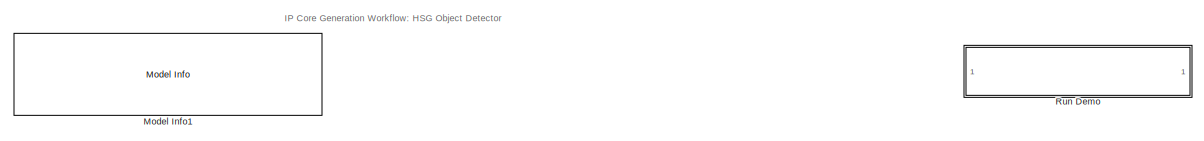
[diagram: root canvas - part 1/5, top left region]
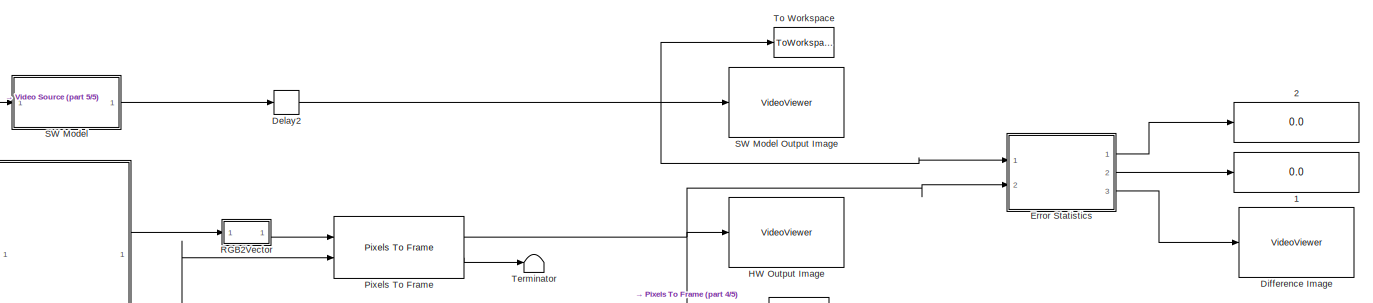
[diagram: root canvas - part 2/5, central region]
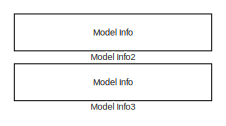
[diagram: root canvas - part 3/5, middle right region]
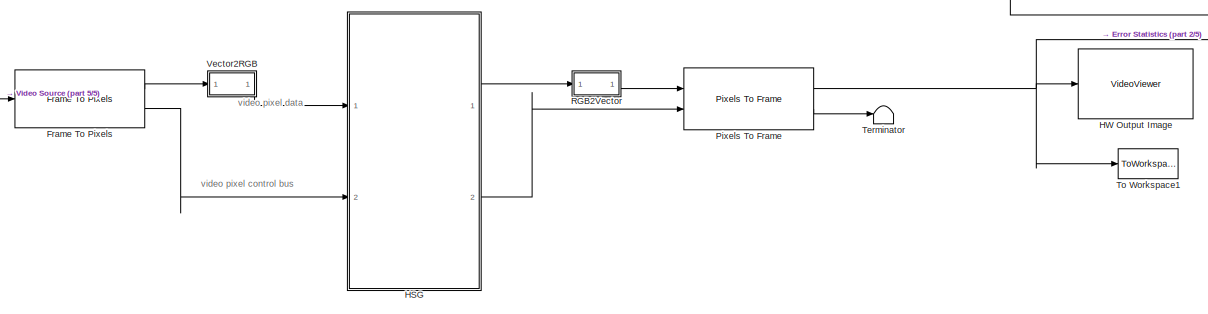
[diagram: root canvas - part 4/5, bottom center region]
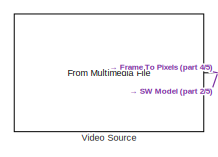
[diagram: root canvas - part 5/5, bottom left region]
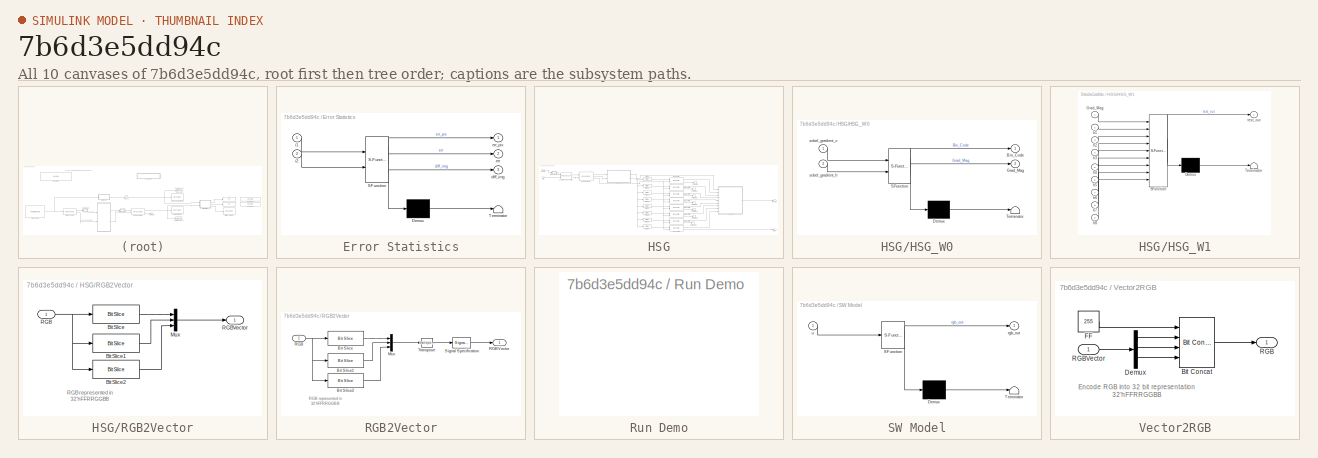
[diagram: thumbnail index - all 10 canvases of the model, root first then tree order]
MODEL slx_7b6d3e5dd94c
KIND model
CONFIG AbsTol = auto
CONFIG EnableMultiTasking = off
CONFIG FixedStep = auto
CONFIG InitFcn = Ts = 1e-3;\nTs_240p = 402*324*Ts;\n\n
CONFIG MaxStep = auto
CONFIG MinStep = auto
CONFIG RelTol = 1e-3
CONFIG SampleTimeConstraint = Unconstrained
CONFIG Solver = FixedStepDiscrete
CONFIG SolverName = FixedStepDiscrete
CONFIG StartTime = 0.0
CONFIG StopTime = Ts_240p
BLOCK [Display]  1
  Decimation = 1
  Ports = [1]
BLOCK [Display]  2
  Decimation = 1
  Ports = [1]
BLOCK [Delay] Delay2
  DelayLength = 1
  InitialCondition = 0
  InputPortMap = u0
  Ports = [1, 1]
BLOCK [VideoViewer] Difference Image
  FigPos = [516.2 717.2 730.4 340.8]
  Ports = [1]
  ScopeSpecificationString = vipscopes.VideoViewerScopeCfg('CurrentConfiguration', extmgr.ConfigurationSet(extmgr.Configuration('Core','General UI',true),extmgr.Configuration('Core','Source UI',true),extmgr.Configuration('Sources','WiredSimulink',true),extmgr.Configuration('Sources','Streaming',false),extmgr.Configuration('Sources','SimulinkEvent',false),extmgr.Configuration('Sources','Workspace',false),extmgr.Configuration('...<+1300ch>
  colormapValue = gray(256)
BLOCK [SubSystem] Error Statistics
  ErrorFcn = Stateflow.Translate.translate
  PermitHierarchicalResolution = ExplicitOnly
  Ports = [2, 3]
  RequestExecContextInheritance = off
  SFBlockType = MATLAB Function
  TreatAsAtomicUnit = on
  Variant = off
BLOCK [Demux] Error Statistics/ Demux 
  Outputs = 1
  Ports = [1, 1]
BLOCK [S-Function] Error Statistics/ SFunction 
  EnableBusSupport = on
  FunctionName = sf_sfun
  PortCounts = [2 4]
  Ports = [2, 4]
  SFcnIsStateOwnerBlock = off
  SFunctionDeploymentMode = off
  Tag = Stateflow S-Function HSG_Old 5
BLOCK [Terminator] Error Statistics/ Terminator 
BLOCK [Outport] Error Statistics/diff_img
  IconDisplay = Port number
  Port = 3
BLOCK [Outport] Error Statistics/err
  IconDisplay = Port number
  Port = 2
BLOCK [Outport] Error Statistics/err_pix
  IconDisplay = Port number
BLOCK [Inport] Error Statistics/i1
  IconDisplay = Port number
BLOCK [Inport] Error Statistics/i2
  IconDisplay = Port number
  Port = 2
BLOCK [Reference] Frame To Pixels  REF=visionhdlio/Frame To Pixels
  Ports = [1, 2]
  SourceBlock = visionhdlio/Frame To Pixels
  SourceType = Frame To Pixels
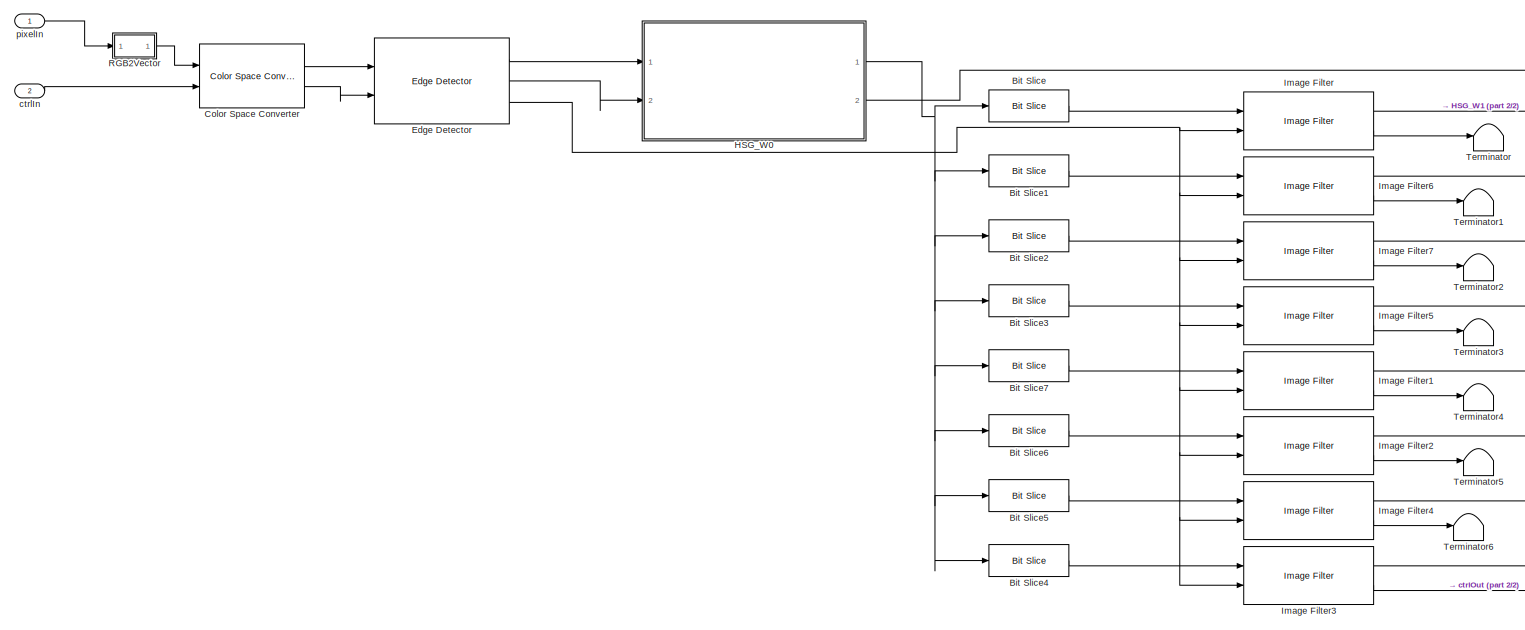
[diagram: HSG - part 1/2, center side, full height]
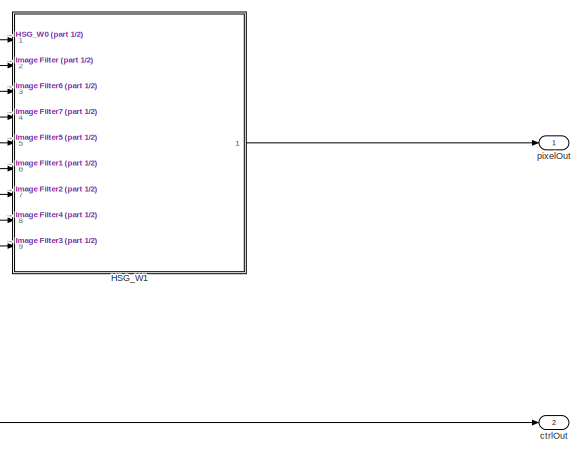
[diagram: HSG - part 2/2, middle right region]
BLOCK [SubSystem] HSG
  Ports = [2, 2]
  RequestExecContextInheritance = off
  TreatAsAtomicUnit = on
  Variant = off
BLOCK [Reference] HSG/Bit Slice  REF=hdlsllib/HDL Operations/Bit Slice
  Ports = [1, 1]
  SourceBlock = hdlsllib/HDL Operations/Bit Slice
  SourceType = Bit Slice
BLOCK [Reference] HSG/Bit Slice1  REF=hdlsllib/HDL Operations/Bit Slice
  Ports = [1, 1]
  SourceBlock = hdlsllib/HDL Operations/Bit Slice
  SourceType = Bit Slice
BLOCK [Reference] HSG/Bit Slice2  REF=hdlsllib/HDL Operations/Bit Slice
  Ports = [1, 1]
  SourceBlock = hdlsllib/HDL Operations/Bit Slice
  SourceType = Bit Slice
BLOCK [Reference] HSG/Bit Slice3  REF=hdlsllib/HDL Operations/Bit Slice
  Ports = [1, 1]
  SourceBlock = hdlsllib/HDL Operations/Bit Slice
  SourceType = Bit Slice
BLOCK [Reference] HSG/Bit Slice4  REF=hdlsllib/HDL Operations/Bit Slice
  Ports = [1, 1]
  SourceBlock = hdlsllib/HDL Operations/Bit Slice
  SourceType = Bit Slice
BLOCK [Reference] HSG/Bit Slice5  REF=hdlsllib/HDL Operations/Bit Slice
  Ports = [1, 1]
  SourceBlock = hdlsllib/HDL Operations/Bit Slice
  SourceType = Bit Slice
BLOCK [Reference] HSG/Bit Slice6  REF=hdlsllib/HDL Operations/Bit Slice
  Ports = [1, 1]
  SourceBlock = hdlsllib/HDL Operations/Bit Slice
  SourceType = Bit Slice
BLOCK [Reference] HSG/Bit Slice7  REF=hdlsllib/HDL Operations/Bit Slice
  Ports = [1, 1]
  SourceBlock = hdlsllib/HDL Operations/Bit Slice
  SourceType = Bit Slice
BLOCK [Reference] HSG/Color Space Converter  REF=visionhdlconversions/Color Space Converter
  Ports = [2, 2]
  SourceBlock = visionhdlconversions/Color Space Converter
  SourceType = Color Space Converter
BLOCK [Reference] HSG/Edge Detector  REF=visionhdlanalysis/Edge Detector
  Ports = [2, 3]
  SourceBlock = visionhdlanalysis/Edge Detector
  SourceType = Edge Detector
BLOCK [SubSystem] HSG/HSG_W0
  ErrorFcn = Stateflow.Translate.translate
  PermitHierarchicalResolution = ExplicitOnly
  Ports = [2, 2]
  RequestExecContextInheritance = off
  SFBlockType = MATLAB Function
  TreatAsAtomicUnit = on
  Variant = off
BLOCK [Demux] HSG/HSG_W0/ Demux 
  Outputs = 1
  Ports = [1, 1]
BLOCK [S-Function] HSG/HSG_W0/ SFunction 
  EnableBusSupport = on
  FunctionName = sf_sfun
  PortCounts = [2 3]
  Ports = [2, 3]
  SFcnIsStateOwnerBlock = off
  SFunctionDeploymentMode = off
  Tag = Stateflow S-Function HSG_Old 3
BLOCK [Terminator] HSG/HSG_W0/ Terminator 
BLOCK [Outport] HSG/HSG_W0/Bin_Code
  IconDisplay = Port number
BLOCK [Outport] HSG/HSG_W0/Grad_Mag
  IconDisplay = Port number
  Port = 2
BLOCK [Inport] HSG/HSG_W0/sobel_gradient_h
  IconDisplay = Port number
  Port = 2
BLOCK [Inport] HSG/HSG_W0/sobel_gradient_v
  IconDisplay = Port number
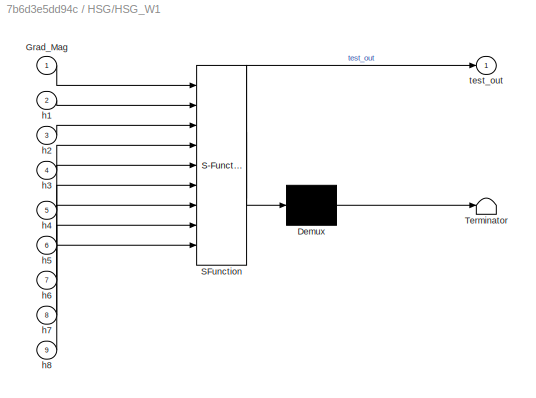
BLOCK [SubSystem] HSG/HSG_W1
  ErrorFcn = Stateflow.Translate.translate
  PermitHierarchicalResolution = ExplicitOnly
  Ports = [9, 1]
  RequestExecContextInheritance = off
  SFBlockType = MATLAB Function
  TreatAsAtomicUnit = on
  Variant = off
BLOCK [Demux] HSG/HSG_W1/ Demux 
  Outputs = 1
  Ports = [1, 1]
BLOCK [S-Function] HSG/HSG_W1/ SFunction 
  EnableBusSupport = on
  FunctionName = sf_sfun
  PortCounts = [9 2]
  Ports = [9, 2]
  SFcnIsStateOwnerBlock = off
  SFunctionDeploymentMode = off
  Tag = Stateflow S-Function HSG_Old 2
BLOCK [Terminator] HSG/HSG_W1/ Terminator 
BLOCK [Inport] HSG/HSG_W1/Grad_Mag
  IconDisplay = Port number
BLOCK [Inport] HSG/HSG_W1/h1
  IconDisplay = Port number
  Port = 2
BLOCK [Inport] HSG/HSG_W1/h2
  IconDisplay = Port number
  Port = 3
BLOCK [Inport] HSG/HSG_W1/h3
  IconDisplay = Port number
  Port = 4
BLOCK [Inport] HSG/HSG_W1/h4
  IconDisplay = Port number
  Port = 5
BLOCK [Inport] HSG/HSG_W1/h5
  IconDisplay = Port number
  Port = 6
BLOCK [Inport] HSG/HSG_W1/h6
  IconDisplay = Port number
  Port = 7
BLOCK [Inport] HSG/HSG_W1/h7
  IconDisplay = Port number
  Port = 8
BLOCK [Inport] HSG/HSG_W1/h8
  IconDisplay = Port number
  Port = 9
BLOCK [Outport] HSG/HSG_W1/test_out
  IconDisplay = Port number
BLOCK [Reference] HSG/Image Filter  REF=visionhdlfilter/Image Filter
  Ports = [2, 2]
  SourceBlock = visionhdlfilter/Image Filter
  SourceType = Image Filter
BLOCK [Reference] HSG/Image Filter1  REF=visionhdlfilter/Image Filter
  Ports = [2, 2]
  SourceBlock = visionhdlfilter/Image Filter
  SourceType = Image Filter
BLOCK [Reference] HSG/Image Filter2  REF=visionhdlfilter/Image Filter
  Ports = [2, 2]
  SourceBlock = visionhdlfilter/Image Filter
  SourceType = Image Filter
BLOCK [Reference] HSG/Image Filter3  REF=visionhdlfilter/Image Filter
  Ports = [2, 2]
  SourceBlock = visionhdlfilter/Image Filter
  SourceType = Image Filter
BLOCK [Reference] HSG/Image Filter4  REF=visionhdlfilter/Image Filter
  Ports = [2, 2]
  SourceBlock = visionhdlfilter/Image Filter
  SourceType = Image Filter
BLOCK [Reference] HSG/Image Filter5  REF=visionhdlfilter/Image Filter
  Ports = [2, 2]
  SourceBlock = visionhdlfilter/Image Filter
  SourceType = Image Filter
BLOCK [Reference] HSG/Image Filter6  REF=visionhdlfilter/Image Filter
  Ports = [2, 2]
  SourceBlock = visionhdlfilter/Image Filter
  SourceType = Image Filter
BLOCK [Reference] HSG/Image Filter7  REF=visionhdlfilter/Image Filter
  Ports = [2, 2]
  SourceBlock = visionhdlfilter/Image Filter
  SourceType = Image Filter
BLOCK [SubSystem] HSG/RGB2Vector
  Ports = [1, 1]
  RequestExecContextInheritance = off
  ShowPortLabels = none
  Variant = off
BLOCK [Reference] HSG/RGB2Vector/Bit Slice  REF=hdlsllib/HDL Operations/Bit Slice
  Ports = [1, 1]
  SourceBlock = hdlsllib/HDL Operations/Bit Slice
  SourceType = Bit Slice
BLOCK [Reference] HSG/RGB2Vector/Bit Slice1  REF=hdlsllib/HDL Operations/Bit Slice
  Ports = [1, 1]
  SourceBlock = hdlsllib/HDL Operations/Bit Slice
  SourceType = Bit Slice
BLOCK [Reference] HSG/RGB2Vector/Bit Slice2  REF=hdlsllib/HDL Operations/Bit Slice
  Ports = [1, 1]
  SourceBlock = hdlsllib/HDL Operations/Bit Slice
  SourceType = Bit Slice
BLOCK [Mux] HSG/RGB2Vector/Mux
  DisplayOption = bar
  Inputs = 3
  Ports = [3, 1]
BLOCK [Inport] HSG/RGB2Vector/RGB
  IconDisplay = Port number
BLOCK [Outport] HSG/RGB2Vector/RGBVector
  IconDisplay = Port number
BLOCK [Terminator] HSG/Terminator
BLOCK [Terminator] HSG/Terminator1
BLOCK [Terminator] HSG/Terminator2
BLOCK [Terminator] HSG/Terminator3
BLOCK [Terminator] HSG/Terminator4
BLOCK [Terminator] HSG/Terminator5
BLOCK [Terminator] HSG/Terminator6
BLOCK [Inport] HSG/ctrlIn
  IconDisplay = Port number
  Port = 2
BLOCK [Outport] HSG/ctrlOut
  IconDisplay = Port number
  Port = 2
BLOCK [Inport] HSG/pixelIn
  IconDisplay = Port number
BLOCK [Outport] HSG/pixelOut
  IconDisplay = Port number
BLOCK [VideoViewer] HW Output Image
  FigPos = [21.8 576.4 730.4 446.4]
  Ports = [1]
  ScopeSpecificationString = vipscopes.VideoViewerScopeCfg('CurrentConfiguration', extmgr.ConfigurationSet(extmgr.Configuration('Core','General UI',true),extmgr.Configuration('Core','Source UI',true),extmgr.Configuration('Sources','WiredSimulink',true),extmgr.Configuration('Sources','Streaming',false),extmgr.Configuration('Sources','SimulinkEvent',false),extmgr.Configuration('Sources','Workspace',false),extmgr.Configuration('...<+1285ch>
  colormapValue = gray(256)
BLOCK [Reference] Model Info1  REF=simulink/Model-Wide
Utilities/Model Info
  Ports = []
  SourceBlock = simulink/Model-Wide\nUtilities/Model Info
  SourceType = CMBlock
BLOCK [Reference] Model Info2  REF=simulink/Model-Wide
Utilities/Model Info
  Ports = []
  SourceBlock = simulink/Model-Wide\nUtilities/Model Info
  SourceType = CMBlock
BLOCK [Reference] Model Info3  REF=simulink/Model-Wide
Utilities/Model Info
  Ports = []
  SourceBlock = simulink/Model-Wide\nUtilities/Model Info
  SourceType = CMBlock
BLOCK [Reference] Pixels To Frame  REF=visionhdlio/Pixels To Frame
  Ports = [2, 2]
  SourceBlock = visionhdlio/Pixels To Frame
  SourceType = Pixels To Frame
BLOCK [SubSystem] RGB2Vector
  Ports = [1, 1]
  RequestExecContextInheritance = off
  ShowPortLabels = none
  Variant = off
BLOCK [Reference] RGB2Vector/Bit Slice  REF=hdlsllib/HDL Operations/Bit Slice
  Ports = [1, 1]
  SourceBlock = hdlsllib/HDL Operations/Bit Slice
  SourceType = Bit Slice
BLOCK [Reference] RGB2Vector/Bit Slice1  REF=hdlsllib/HDL Operations/Bit Slice
  Ports = [1, 1]
  SourceBlock = hdlsllib/HDL Operations/Bit Slice
  SourceType = Bit Slice
BLOCK [Reference] RGB2Vector/Bit Slice2  REF=hdlsllib/HDL Operations/Bit Slice
  Ports = [1, 1]
  SourceBlock = hdlsllib/HDL Operations/Bit Slice
  SourceType = Bit Slice
BLOCK [Mux] RGB2Vector/Mux
  DisplayOption = bar
  Inputs = 3
  Ports = [3, 1]
BLOCK [Inport] RGB2Vector/RGB
  IconDisplay = Port number
BLOCK [Outport] RGB2Vector/RGBVector
  IconDisplay = Port number
BLOCK [SignalSpecification] RGB2Vector/Signal Specification
  SignalType = real
BLOCK [Math] RGB2Vector/Transpose
  Operator = transpose
  Ports = [1, 1]
BLOCK [SubSystem] Run Demo
  OpenFcn = hdladvisor([bdroot, '/HSG'])
  Ports = []
  RequestExecContextInheritance = off
  Variant = off
BLOCK [SubSystem] SW Model
  ErrorFcn = Stateflow.Translate.translate
  PermitHierarchicalResolution = ExplicitOnly
  Ports = [1, 1]
  RequestExecContextInheritance = off
  SFBlockType = MATLAB Function
  TreatAsAtomicUnit = on
  Variant = off
BLOCK [VideoViewer] SW Model Output Image
  FigPos = [733.8 573.2 730.4 446.4]
  Ports = [1]
  ScopeSpecificationString = vipscopes.VideoViewerScopeCfg('CurrentConfiguration', extmgr.ConfigurationSet(extmgr.Configuration('Core','General UI',true),extmgr.Configuration('Core','Source UI',true),extmgr.Configuration('Sources','WiredSimulink',true),extmgr.Configuration('Sources','Streaming',false),extmgr.Configuration('Sources','SimulinkEvent',false),extmgr.Configuration('Sources','Workspace',false),extmgr.Configuration('...<+1299ch>
  colormapValue = gray(256)
BLOCK [Demux] SW Model/ Demux 
  Outputs = 1
  Ports = [1, 1]
BLOCK [S-Function] SW Model/ SFunction 
  EnableBusSupport = on
  FunctionName = sf_sfun
  PortCounts = [1 2]
  Ports = [1, 2]
  SFcnIsStateOwnerBlock = off
  SFunctionDeploymentMode = off
  Tag = Stateflow S-Function HSG_Old 1
BLOCK [Terminator] SW Model/ Terminator 
BLOCK [Outport] SW Model/rgb_out
  IconDisplay = Port number
BLOCK [Inport] SW Model/u
  IconDisplay = Port number
BLOCK [Terminator] Terminator
BLOCK [ToWorkspace] To Workspace
  MaxDataPoints = inf
  Ports = [1]
  SampleTime = -1
  SaveFormat = Timeseries
  VariableName = behavioural
BLOCK [ToWorkspace] To Workspace1
  MaxDataPoints = inf
  Ports = [1]
  SampleTime = -1
  SaveFormat = Timeseries
  VariableName = HW_Out
BLOCK [SubSystem] Vector2RGB
  Ports = [1, 1]
  RequestExecContextInheritance = off
  ShowPortLabels = none
  Variant = off
BLOCK [Reference] Vector2RGB/Bit Concat  REF=hdlsllib/HDL Operations/Bit Concat
  Ports = [4, 1]
  SourceBlock = hdlsllib/HDL Operations/Bit Concat
  SourceType = Bit Concat
BLOCK [Demux] Vector2RGB/Demux
  DisplayOption = bar
  Outputs = 3
  Ports = [1, 3]
BLOCK [Constant] Vector2RGB/FF
  OutDataTypeStr = uint8
  SampleTime = Ts
  Value = 255
BLOCK [Outport] Vector2RGB/RGB
  IconDisplay = Port number
BLOCK [Inport] Vector2RGB/RGBVector
  IconDisplay = Port number
BLOCK [Reference] Video Source  REF=dspvision/From Multimedia File
  Ports = [0, 1]
  SourceBlock = dspvision/From Multimedia File
  SourceType = From Multimedia File
ANNOTATION (root): IP Core Generation Workflow: HSG Object Detector
ANNOTATION (root): video pixel control bus
ANNOTATION (root): video pixel data
ANNOTATION HSG/RGB2Vector: RGB represented in 32'hFFRRGGBB
ANNOTATION RGB2Vector: RGB represented in 32'hFFRRGGBB
ANNOTATION Vector2RGB: Encode RGB into 32 bit representation 32'hFFRRGGBB
NET Delay2:1 -> Error Statistics:1, SW Model Output Image:1, To Workspace:1
LINE Error Statistics:1 ->  2:1
LINE Error Statistics:2 ->  1:1
LINE Error Statistics:3 -> Difference Image:1
LINE Frame To Pixels:1 -> Vector2RGB:1
LINE Frame To Pixels:2 -> HSG:2
LINE HSG/Bit Slice1:1 -> HSG/Image Filter6:1
LINE HSG/Bit Slice2:1 -> HSG/Image Filter7:1
LINE HSG/Bit Slice3:1 -> HSG/Image Filter5:1
LINE HSG/Bit Slice4:1 -> HSG/Image Filter3:1
LINE HSG/Bit Slice5:1 -> HSG/Image Filter4:1
LINE HSG/Bit Slice6:1 -> HSG/Image Filter2:1
LINE HSG/Bit Slice7:1 -> HSG/Image Filter1:1
LINE HSG/Bit Slice:1 -> HSG/Image Filter:1
LINE HSG/Color Space Converter:1 -> HSG/Edge Detector:1
LINE HSG/Color Space Converter:2 -> HSG/Edge Detector:2
LINE HSG/Edge Detector:1 -> HSG/HSG_W0:1
LINE HSG/Edge Detector:2 -> HSG/HSG_W0:2
NET HSG/Edge Detector:3 -> HSG/Image Filter1:2, HSG/Image Filter2:2, HSG/Image Filter3:2, HSG/Image Filter4:2, HSG/Image Filter5:2, HSG/Image Filter6:2, HSG/Image Filter7:2, HSG/Image Filter:2
NET HSG/HSG_W0:1 -> HSG/Bit Slice1:1, HSG/Bit Slice2:1, HSG/Bit Slice3:1, HSG/Bit Slice4:1, HSG/Bit Slice5:1, HSG/Bit Slice6:1, HSG/Bit Slice7:1, HSG/Bit Slice:1
LINE HSG/HSG_W0:2 -> HSG/HSG_W1:1
LINE HSG/HSG_W1:1 -> HSG/pixelOut:1
LINE HSG/Image Filter1:1 -> HSG/HSG_W1:6
LINE HSG/Image Filter1:2 -> HSG/Terminator4:1
LINE HSG/Image Filter2:1 -> HSG/HSG_W1:7
LINE HSG/Image Filter2:2 -> HSG/Terminator5:1
LINE HSG/Image Filter3:1 -> HSG/HSG_W1:9
LINE HSG/Image Filter3:2 -> HSG/ctrlOut:1
LINE HSG/Image Filter4:1 -> HSG/HSG_W1:8
LINE HSG/Image Filter4:2 -> HSG/Terminator6:1
LINE HSG/Image Filter5:1 -> HSG/HSG_W1:5
LINE HSG/Image Filter5:2 -> HSG/Terminator3:1
LINE HSG/Image Filter6:1 -> HSG/HSG_W1:3
LINE HSG/Image Filter6:2 -> HSG/Terminator1:1
LINE HSG/Image Filter7:1 -> HSG/HSG_W1:4
LINE HSG/Image Filter7:2 -> HSG/Terminator2:1
LINE HSG/Image Filter:1 -> HSG/HSG_W1:2
LINE HSG/Image Filter:2 -> HSG/Terminator:1
LINE HSG/RGB2Vector/Bit Slice1:1 -> HSG/RGB2Vector/Mux:2
LINE HSG/RGB2Vector/Bit Slice2:1 -> HSG/RGB2Vector/Mux:3
LINE HSG/RGB2Vector/Bit Slice:1 -> HSG/RGB2Vector/Mux:1
LINE HSG/RGB2Vector/Mux:1 -> HSG/RGB2Vector/RGBVector:1
NET HSG/RGB2Vector/RGB:1 -> HSG/RGB2Vector/Bit Slice1:1, HSG/RGB2Vector/Bit Slice2:1, HSG/RGB2Vector/Bit Slice:1
LINE HSG/RGB2Vector:1 -> HSG/Color Space Converter:1
LINE HSG/ctrlIn:1 -> HSG/Color Space Converter:2
LINE HSG/pixelIn:1 -> HSG/RGB2Vector:1
LINE HSG:1 -> RGB2Vector:1
LINE HSG:2 -> Pixels To Frame:2
NET Pixels To Frame:1 -> Error Statistics:2, HW Output Image:1, To Workspace1:1
LINE Pixels To Frame:2 -> Terminator:1
LINE RGB2Vector/Bit Slice1:1 -> RGB2Vector/Mux:2
LINE RGB2Vector/Bit Slice2:1 -> RGB2Vector/Mux:3
LINE RGB2Vector/Bit Slice:1 -> RGB2Vector/Mux:1
LINE RGB2Vector/Mux:1 -> RGB2Vector/Transpose:1
NET RGB2Vector/RGB:1 -> RGB2Vector/Bit Slice1:1, RGB2Vector/Bit Slice2:1, RGB2Vector/Bit Slice:1
LINE RGB2Vector/Signal Specification:1 -> RGB2Vector/RGBVector:1
LINE RGB2Vector/Transpose:1 -> RGB2Vector/Signal Specification:1
LINE RGB2Vector:1 -> Pixels To Frame:1
LINE SW Model:1 -> Delay2:1
LINE Vector2RGB/Bit Concat:1 -> Vector2RGB/RGB:1
LINE Vector2RGB/Demux:1 -> Vector2RGB/Bit Concat:2
LINE Vector2RGB/Demux:2 -> Vector2RGB/Bit Concat:3
LINE Vector2RGB/Demux:3 -> Vector2RGB/Bit Concat:4
LINE Vector2RGB/FF:1 -> Vector2RGB/Bit Concat:1
LINE Vector2RGB/RGBVector:1 -> Vector2RGB/Demux:1
LINE Vector2RGB:1 -> HSG:1
NET Video Source:1 -> Frame To Pixels:1, SW Model:1
note: NET lines group one-source signal fan-out (src -> all destinations, sorted); 1:1 wires keep LINE
CHART SW Model states=1 transitions=1
  STATE_LABEL 'eML_blk_kernel()'
  STATE_LABEL 'SCRIPT:\nfunction rgb_out   = HSG_SW(u)\n%   Convert to Graysclae\ny = double(rgb2gray(u));\ns = size(y);\n\n%   Apply Soble filter in both vertical and horizontal directions\nv = 0.125*[1,0,-1;2,0,-2;1,0,-1];\nh = 0.125*[1,2,1;0,0,0;-1,-2,-1];\nSobel_v = imfilter(y,v);\nSobel_h = imfilter(y,h);\n\n%   Calculate Gradient magnitude and orientation\nGrad_Mag = uint8(sqrt(double(Sobel_v.*Sobel_v + Sobel_h.*Sobel_...<+2060ch>'
CHART HSG/HSG_W1 states=1 transitions=1
  STATE_LABEL 'eML_blk_kernel()'
  STATE_LABEL 'SCRIPT:\nfunction test_out  = HSG_W1(Grad_Mag, h1, h2, h3, h4, h5, h6, h7, h8)\n\nh1_in = double(h1);\nh2_in = double(h2);\nh3_in = double(h3);\nh4_in = double(h4);\nh5_in = double(h5);\nh6_in = double(h6);\nh7_in = double(h7);\nh8_in = double(h8);\n\nh11 = fi(h1_in, 0, 4, 0);\nh22 = fi(h2_in, 0, 4, 0);\nh33 = fi(h3_in, 0, 4, 0);\nh44 = fi(h4_in, 0, 4, 0);\nh55 = fi(h5_in, 0, 4, 0);\nh66 = fi(h6_in, 0, 4, 0);\nh77 ...<+104ch>'
CHART HSG/HSG_W0 states=1 transitions=1
  STATE_LABEL 'eML_blk_kernel()'
  STATE_LABEL 'SCRIPT:\nfunction [Bin_Code, Grad_Mag] = HSG_W0(sobel_gradient_v, sobel_gradient_h)\n    Alpha = fi(255, 0, 8, 0);\n\n    %No real need for square root operation. Use condition Grad_Mag > 256\n    %instead of Grad_Mag > 16.\n%     Grad_Mag = sqrt(sobel_gradient_v*sobel_gradient_v + sobel_gradient_h*sobel_gradient_h);\n    Grad_Mag = (sobel_gradient_v*sobel_gradient_v + sobel_gradient_h*sobel_gradient_h);...<+2090ch>'
CHART Error Statistics states=1 transitions=1
  STATE_LABEL 'eML_blk_kernel()'
  STATE_LABEL 'SCRIPT:\nfunction [err_pix, err, diff_img] = Error_Stats(i1,i2)\ne = i1-i2;\ndiff_img = abs(e);\ne = e(:);\nz = (e==0);     %Pixels with zero error\nerr_pix = 100*(1-sum(z)/length(z)); %Percentage of pixels with error\nerr = sum(sum(sum(abs(e))));    %Sum of all error values\nerr = err/length(z);            %Average error per pixel\n'
